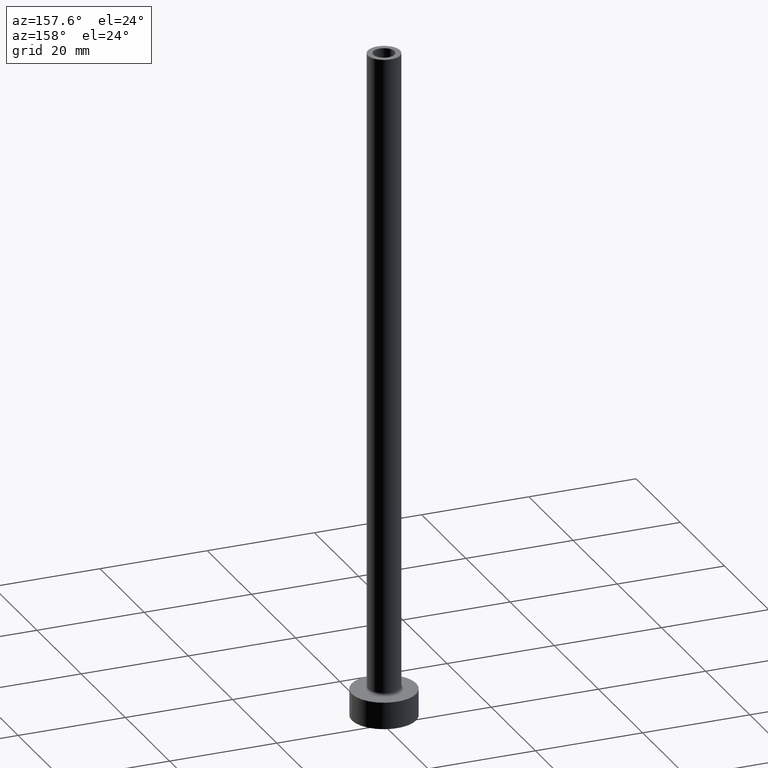
[diagram: clean part render]
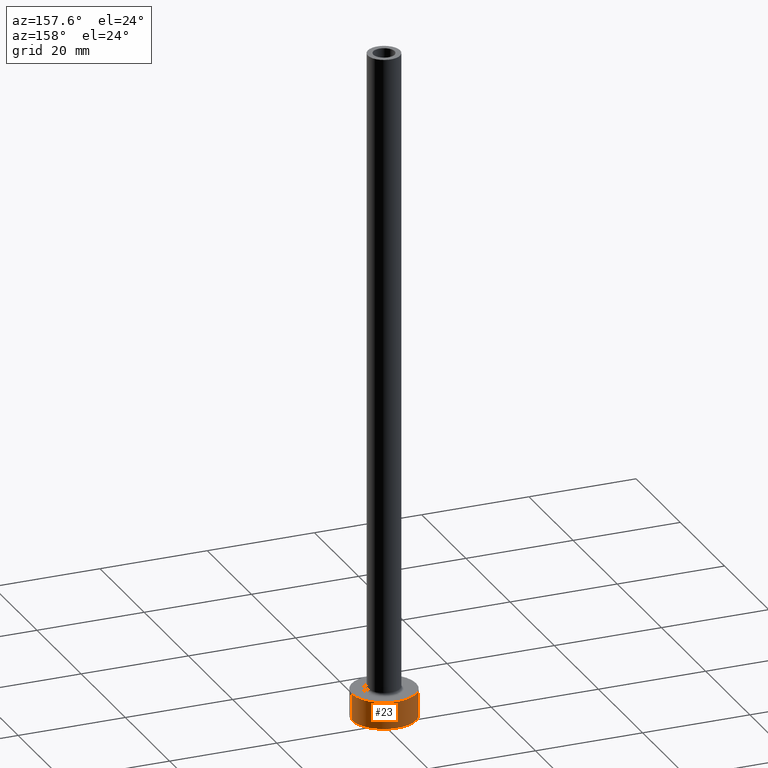
[diagram: same view with one face highlighted and labeled with its STEP entity id]
A machine part, auxiliary view. The second image highlights one B-rep face of the part: STEP entity #23.
In plain terms, the highlighted cylindrical surface (edge-blend (fillet) strip) has radius 6 mm, axis along (-0, -0, -1).
Its self-contained STEP definition (entity closure, byte-faithful):
#14 = EDGE_LOOP ( 'NONE', ( #126, #187, #86, #418 ) ) ;
#23 = ADVANCED_FACE ( 'NONE', ( #277 ), #96, .T. ) ;
#45 = CARTESIAN_POINT ( 'NONE',  ( 6.000000000000000888, 7.347880794884120722E-16, 0.000000000000000000 ) ) ;
#49 = DIRECTION ( 'NONE',  ( 1.000000000000000000, 0.000000000000000000, 0.000000000000000000 ) ) ;
#53 = DIRECTION ( 'NONE',  ( -0.000000000000000000, -0.000000000000000000, -1.000000000000000000 ) ) ;
#65 = CARTESIAN_POINT ( 'NONE',  ( -6.000000000000000888, 0.000000000000000000, 0.000000000000000000 ) ) ;
#66 = LINE ( 'NONE', #307, #360 ) ;
#86 = ORIENTED_EDGE ( 'NONE', *, *, #151, .T. ) ;
#96 = CYLINDRICAL_SURFACE ( 'NONE', #247, 6.000000000000000888 ) ;
#100 = VERTEX_POINT ( 'NONE', #358 ) ;
#104 = CIRCLE ( 'NONE', #194, 6.000000000000000888 ) ;
#126 = ORIENTED_EDGE ( 'NONE', *, *, #320, .F. ) ;
#151 = EDGE_CURVE ( 'NONE', #264, #166, #430, .T. ) ;
#166 = VERTEX_POINT ( 'NONE', #65 ) ;
#182 = CARTESIAN_POINT ( 'NONE',  ( 0.000000000000000000, 0.000000000000000000, 0.000000000000000000 ) ) ;
#185 = CARTESIAN_POINT ( 'NONE',  ( 0.000000000000000000, 0.000000000000000000, 5.000000000000000000 ) ) ;
#187 = ORIENTED_EDGE ( 'NONE', *, *, #207, .T. ) ;
#194 = AXIS2_PLACEMENT_3D ( 'NONE', #185, #270, #49 ) ;
#207 = EDGE_CURVE ( 'NONE', #100, #264, #459, .T. ) ;
#247 = AXIS2_PLACEMENT_3D ( 'NONE', #348, #417, #249 ) ;
#249 = DIRECTION ( 'NONE',  ( -1.000000000000000000, 0.000000000000000000, 0.000000000000000000 ) ) ;
#252 = DIRECTION ( 'NONE',  ( 0.000000000000000000, 0.000000000000000000, 1.000000000000000000 ) ) ;
#261 = CARTESIAN_POINT ( 'NONE',  ( -6.000000000000000888, 0.000000000000000000, 5.000000000000000000 ) ) ;
#264 = VERTEX_POINT ( 'NONE', #45 ) ;
#270 = DIRECTION ( 'NONE',  ( 0.000000000000000000, 0.000000000000000000, 1.000000000000000000 ) ) ;
#277 = FACE_OUTER_BOUND ( 'NONE', #14, .T. ) ;
#287 = CARTESIAN_POINT ( 'NONE',  ( 6.000000000000000888, 7.347880794884120722E-16, 5.000000000000000000 ) ) ;
#290 = AXIS2_PLACEMENT_3D ( 'NONE', #182, #252, #389 ) ;
#307 = CARTESIAN_POINT ( 'NONE',  ( -6.000000000000000888, 0.000000000000000000, 5.000000000000000000 ) ) ;
#318 = DIRECTION ( 'NONE',  ( -0.000000000000000000, -0.000000000000000000, -1.000000000000000000 ) ) ;
#320 = EDGE_CURVE ( 'NONE', #100, #337, #104, .T. ) ;
#337 = VERTEX_POINT ( 'NONE', #261 ) ;
#348 = CARTESIAN_POINT ( 'NONE',  ( 0.000000000000000000, 0.000000000000000000, 5.000000000000000000 ) ) ;
#358 = CARTESIAN_POINT ( 'NONE',  ( 6.000000000000000888, 7.347880794884120722E-16, 5.000000000000000000 ) ) ;
#360 = VECTOR ( 'NONE', #53, 1000.000000000000000 ) ;
#389 = DIRECTION ( 'NONE',  ( 1.000000000000000000, 0.000000000000000000, 0.000000000000000000 ) ) ;
#417 = DIRECTION ( 'NONE',  ( -0.000000000000000000, -0.000000000000000000, -1.000000000000000000 ) ) ;
#418 = ORIENTED_EDGE ( 'NONE', *, *, #454, .F. ) ;
#430 = CIRCLE ( 'NONE', #290, 6.000000000000000888 ) ;
#437 = VECTOR ( 'NONE', #318, 1000.000000000000000 ) ;
#454 = EDGE_CURVE ( 'NONE', #337, #166, #66, .T. ) ;
#459 = LINE ( 'NONE', #287, #437 ) ;